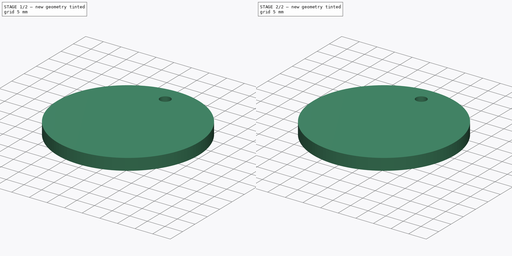
[diagram: build sequence overview — one tinted view per stage of 2, left to right]
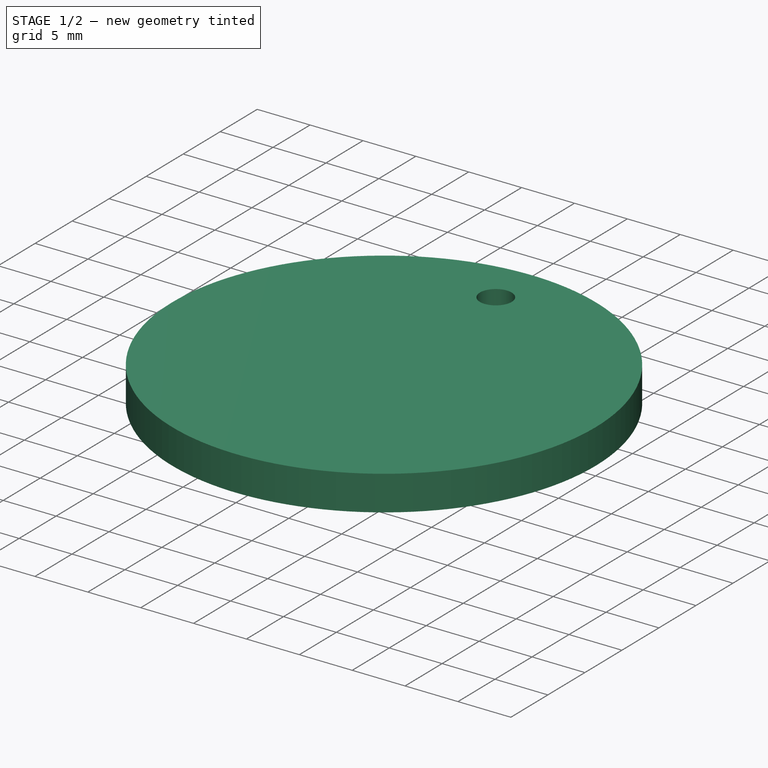
[diagram: stage 1 of 2 — iso view after this stage's code; geometry added in this stage tinted green]
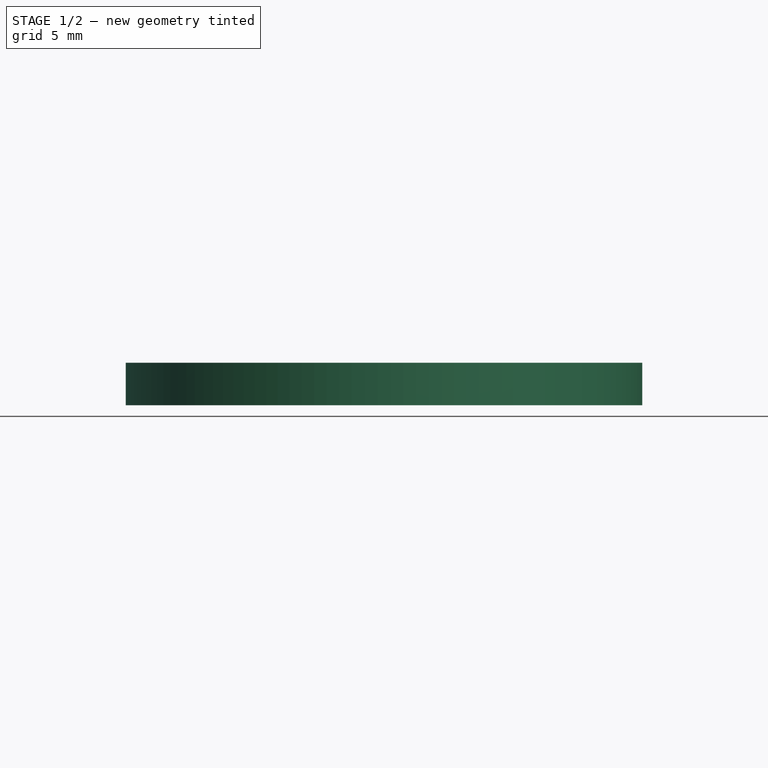
[diagram: stage 1 of 2 — front view after this stage's code; geometry added in this stage tinted green]
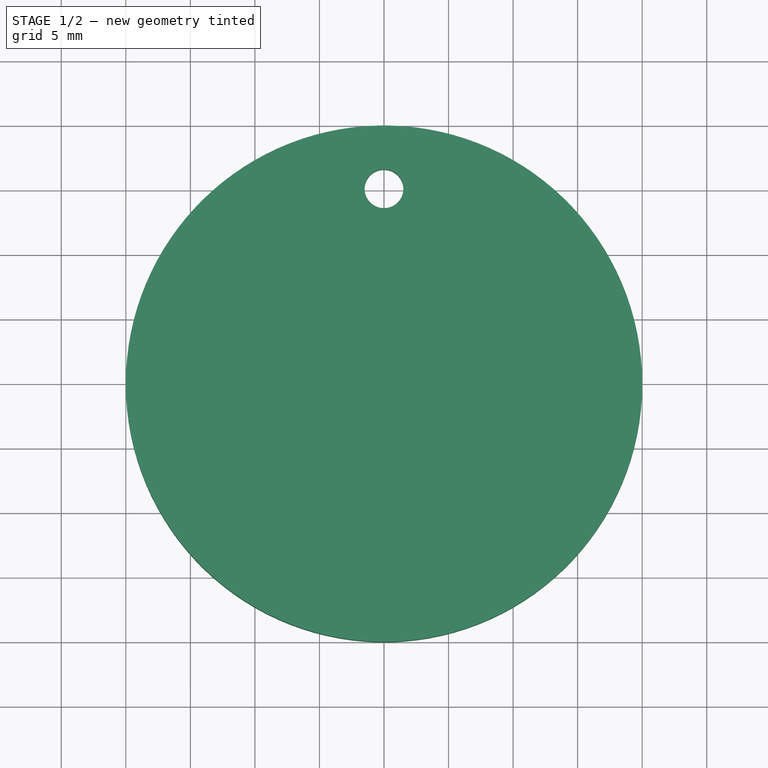
[diagram: stage 1 of 2 — top view after this stage's code; geometry added in this stage tinted green]
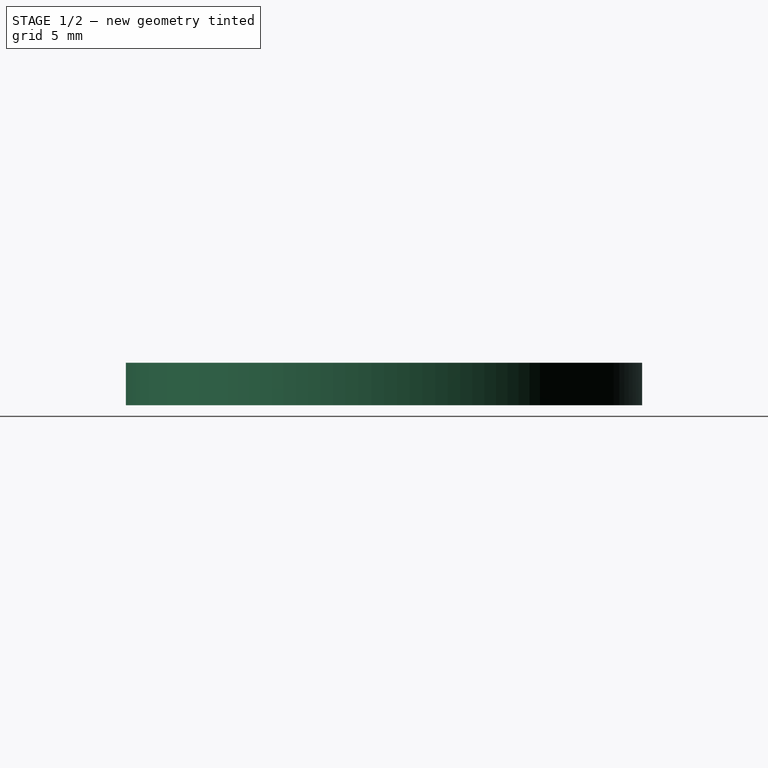
[diagram: stage 1 of 2 — right view after this stage's code; geometry added in this stage tinted green]
FCSTD DOCUMENT  (FreeCAD 0.14R3700 (Git))
Label: T5-ej1
License: CreativeCommons Attribution-ShareAlike
LicenseURL: http://creativecommons.org/licenses/by-sa/4.0/
objects: App::DocumentObjectGroup×2, Part::Feature×2, Part::Cylinder×1, Sketcher::SketchObject×1, PartDesign::Pocket×1, Part::FeaturePython×1
note: 7 computed .brp shape members not serialized (recipe doc carries the construction recipe); baked Part::Feature solids carry a one-line shape summary decoded from their .brp

FEATURE [Part::Cylinder] Cylinder  label="casino-chip-main body"
  Angle = 360
  Height = 3.3
  Radius = 20
FEATURE [Sketcher::SketchObject] Sketch  label="hole-sketch"
  Placement = pos=(0,0,3.3) rot=(0,0,1;0rad)
  Support = -> Cylinder [Face2]
  sketch-geometry (1):
    g0: Circle CenterX=0 CenterY=15.1 CenterZ=0 NormalX=0 NormalY=0 NormalZ=1 Radius=1.5
  constraints (3):
    c: Radius(g0) = 1.5
    c: PointOnObject(g0,g-2)
    c: DistanceY(g-1,g0) = 15.1
FEATURE [PartDesign::Pocket] Pocket  label="casino-chip-key-chain"
  Length = 5
  Sketch = -> Sketch
  Type = 1
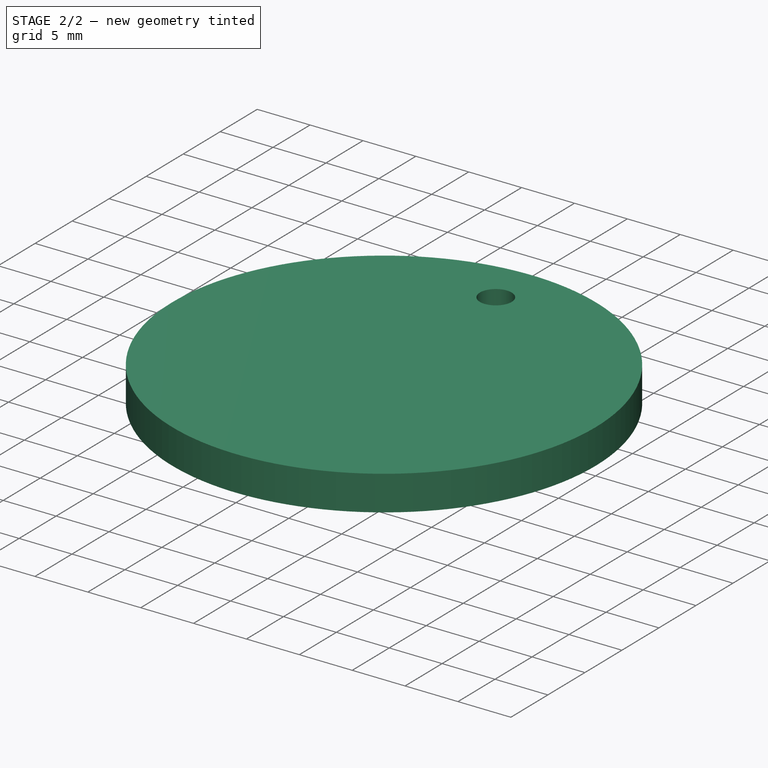
[diagram: stage 2 of 2 — iso view after this stage's code; geometry added in this stage tinted green]
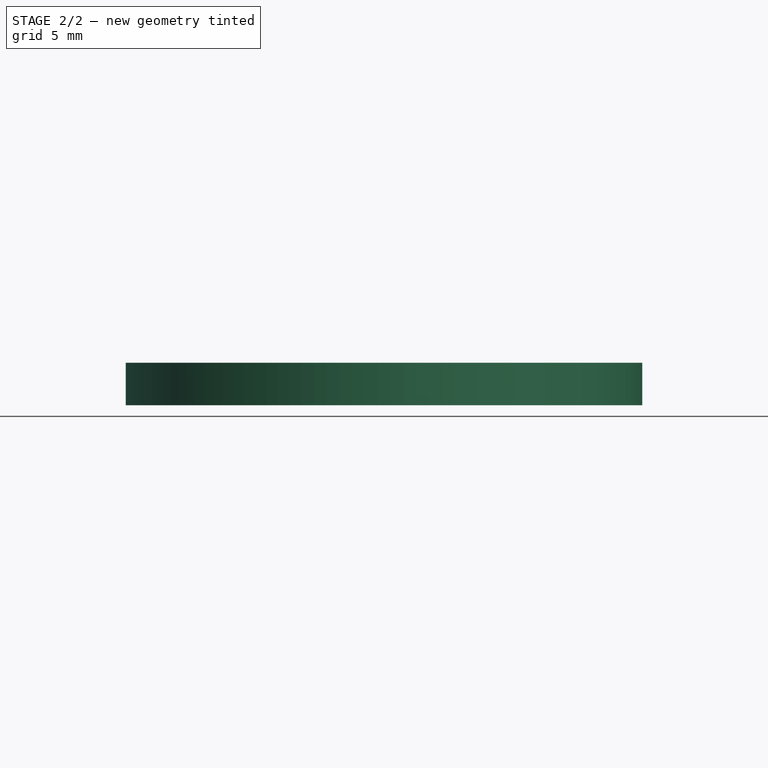
[diagram: stage 2 of 2 — front view after this stage's code; geometry added in this stage tinted green]
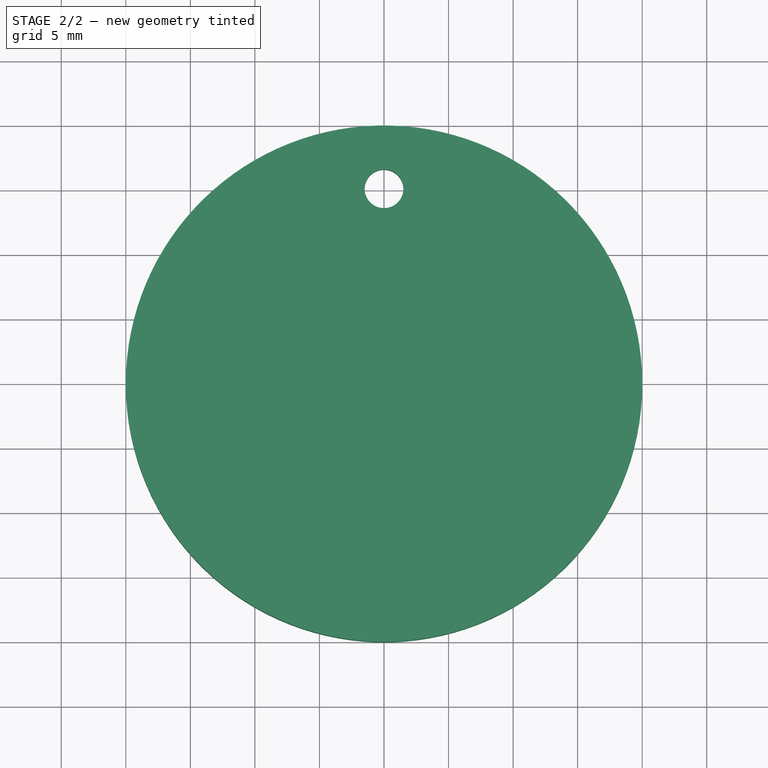
[diagram: stage 2 of 2 — top view after this stage's code; geometry added in this stage tinted green]
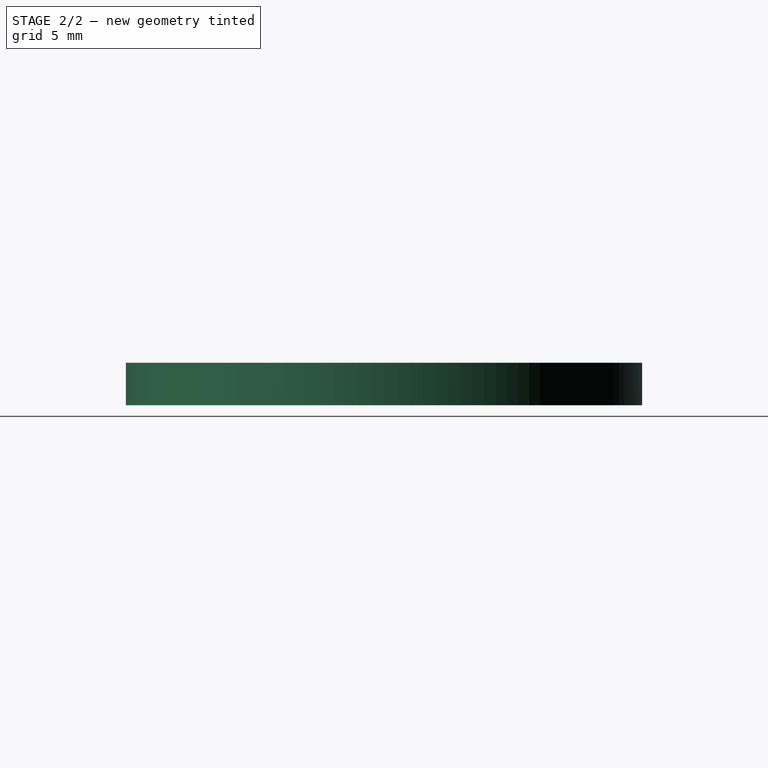
[diagram: stage 2 of 2 — right view after this stage's code; geometry added in this stage tinted green]
FEATURE [App::DocumentObjectGroup] Group001  label="Casino-chip-src"
  Group = -> [Cylinder,Pocket]
FEATURE [Part::FeaturePython] Clone  label="Clone of casino-chip-key-chain"  # Draft clone (typed FeaturePython)
  Objects = -> [Pocket]
  Scale = (1,1,1)
FEATURE [Part::Feature] Sweep  label="key-ring-model-1"
  Placement = pos=(-1.2,24.7546,1.6391) rot=(0.333333,0.881918,0.333333;1.69612rad)
  shape: bbox 3.31 x 27.02 x 26.33 mm, 4 faces (baked)
FEATURE [Part::Feature] Cut  label="key-model-1"
  Placement = pos=(-5.46976,31.0266,0) rot=(0,0,1;0.517888rad)
  shape: bbox 49.82 x 36.6 x 2.3 mm, 44 faces (baked)
FEATURE [App::DocumentObjectGroup] Group  label="Assembly"
  Group = -> [Clone,Sweep,Cut]
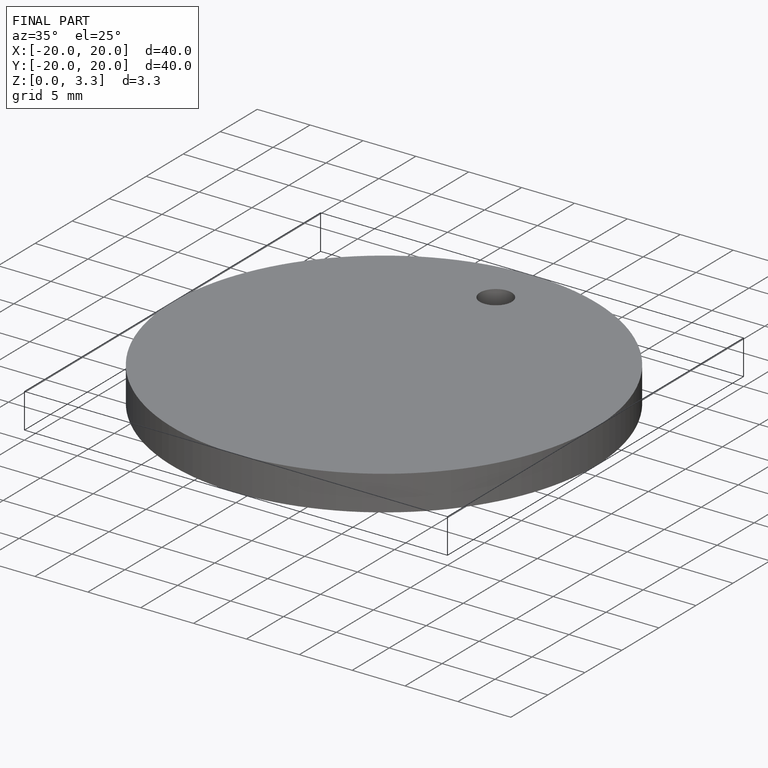
[diagram: finished part — iso view with bounding-box wireframe]
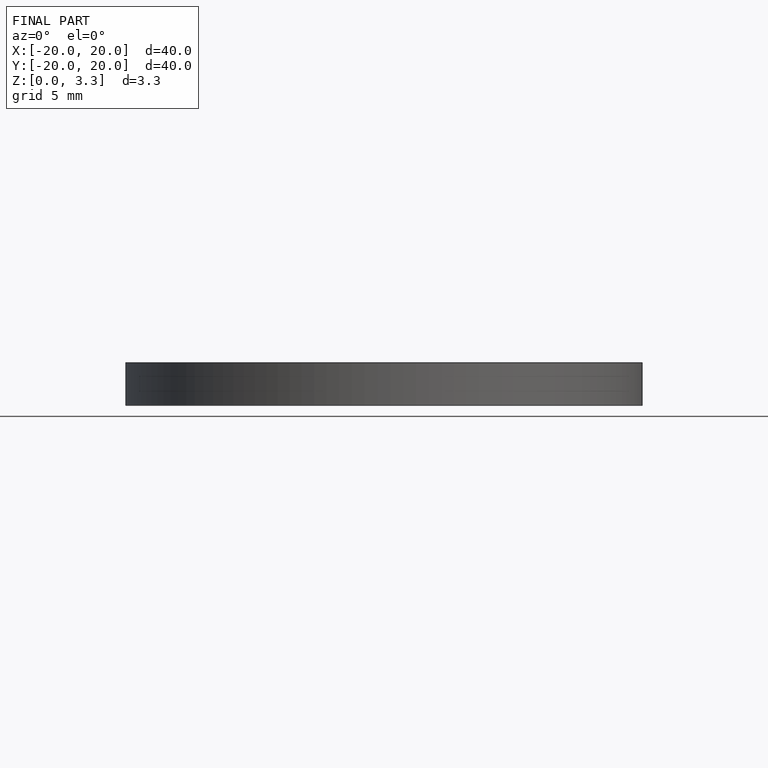
[diagram: finished part — front view with bounding-box wireframe]
